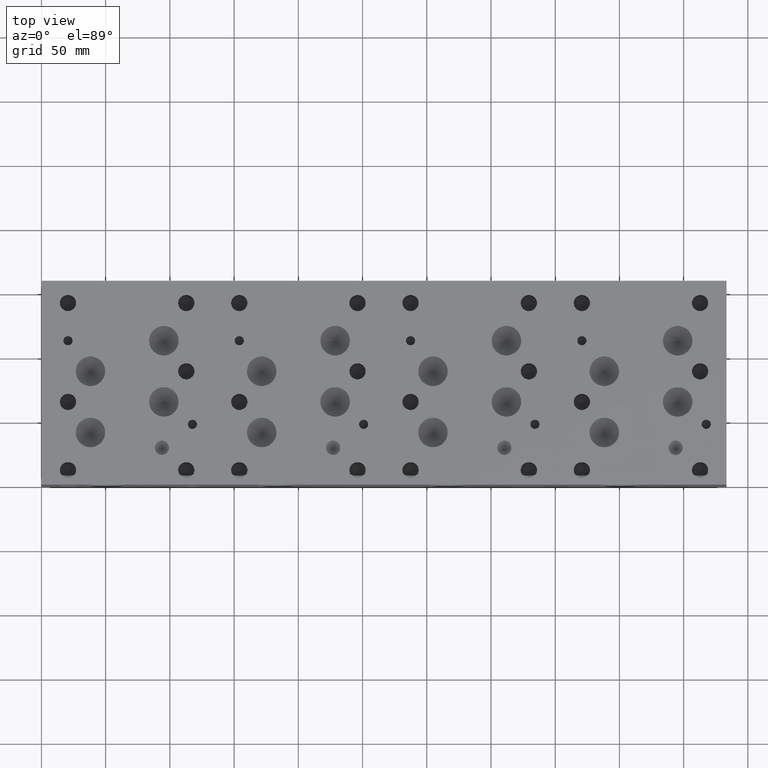
[diagram: clean part render]
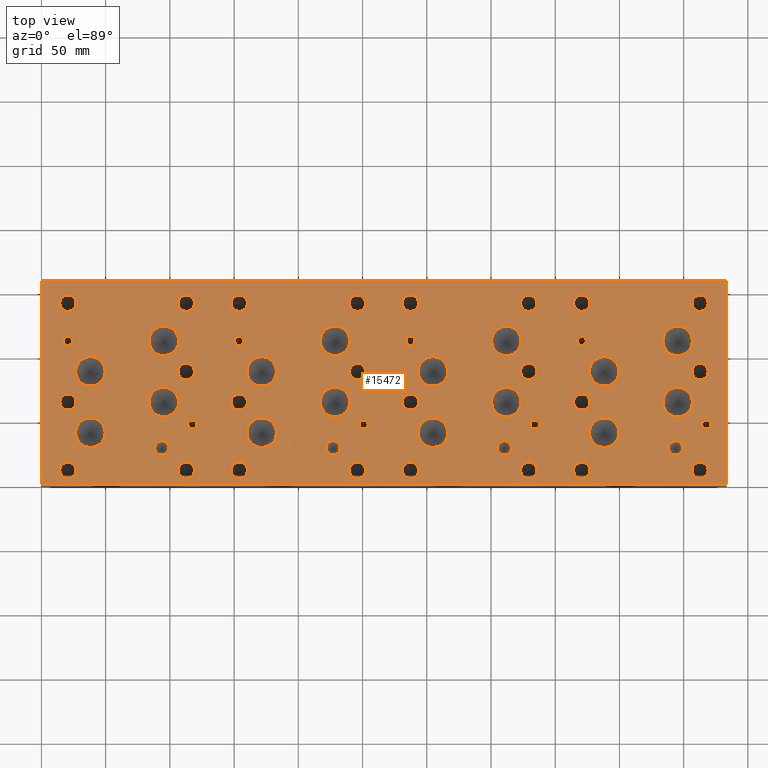
[diagram: same view with one face highlighted and labeled with its STEP entity id]
A machine part, top view. The second image highlights one B-rep face of the part: STEP entity #15472.
In plain terms, the highlighted planar face has unit normal (0, 0, 1).
Its self-contained STEP definition (entity closure, byte-faithful):
#421=CIRCLE('',#15925,5.5626);
#422=CIRCLE('',#15926,5.5626);
#425=CIRCLE('',#15931,5.5626);
#426=CIRCLE('',#15932,5.5626);
#429=CIRCLE('',#15937,5.5626);
#430=CIRCLE('',#15938,5.5626);
#530=CIRCLE('',#16116,5.55625);
#531=CIRCLE('',#16117,5.55625);
#534=CIRCLE('',#16122,11.50874);
#535=CIRCLE('',#16123,11.50874);
#538=CIRCLE('',#16128,11.5062);
#539=CIRCLE('',#16129,11.5062);
#542=CIRCLE('',#16134,11.5062);
#543=CIRCLE('',#16135,11.5062);
#546=CIRCLE('',#16140,11.5062);
#547=CIRCLE('',#16141,11.5062);
#550=CIRCLE('',#16146,11.5062);
#551=CIRCLE('',#16147,11.5062);
#554=CIRCLE('',#16152,11.5062);
#555=CIRCLE('',#16153,11.5062);
#558=CIRCLE('',#16158,11.5062);
#559=CIRCLE('',#16159,11.5062);
#562=CIRCLE('',#16164,11.5062);
#563=CIRCLE('',#16165,11.5062);
#566=CIRCLE('',#16170,11.5062);
#567=CIRCLE('',#16171,11.5062);
#570=CIRCLE('',#16176,11.5062);
#571=CIRCLE('',#16177,11.5062);
#574=CIRCLE('',#16182,11.5062);
#575=CIRCLE('',#16183,11.5062);
#578=CIRCLE('',#16188,11.5062);
#579=CIRCLE('',#16189,11.5062);
#582=CIRCLE('',#16194,11.5062);
#583=CIRCLE('',#16195,11.5062);
#586=CIRCLE('',#16200,11.5062);
#587=CIRCLE('',#16201,11.5062);
#590=CIRCLE('',#16206,11.5062);
#591=CIRCLE('',#16207,11.5062);
#594=CIRCLE('',#16212,11.5062);
#595=CIRCLE('',#16213,11.5062);
#598=CIRCLE('',#16218,3.5687);
#599=CIRCLE('',#16219,3.5687);
#602=CIRCLE('',#16224,3.5687);
#603=CIRCLE('',#16225,3.5687);
#606=CIRCLE('',#16230,3.5687);
#607=CIRCLE('',#16231,3.5687);
#610=CIRCLE('',#16236,3.5687);
#611=CIRCLE('',#16237,3.5687);
#614=CIRCLE('',#16242,3.5687);
#615=CIRCLE('',#16243,3.5687);
#618=CIRCLE('',#16248,3.5687);
#619=CIRCLE('',#16249,3.5687);
#622=CIRCLE('',#16254,3.5687);
#623=CIRCLE('',#16255,3.5687);
#626=CIRCLE('',#16260,3.5687);
#627=CIRCLE('',#16261,3.5687);
#633=CIRCLE('',#16270,6.35);
#634=CIRCLE('',#16271,6.35);
#640=CIRCLE('',#16281,6.35);
#641=CIRCLE('',#16282,6.35);
#647=CIRCLE('',#16292,6.35);
#648=CIRCLE('',#16293,6.35);
#654=CIRCLE('',#16303,6.35);
#655=CIRCLE('',#16304,6.35);
#661=CIRCLE('',#16314,6.35);
#662=CIRCLE('',#16315,6.35);
#668=CIRCLE('',#16325,6.35);
#669=CIRCLE('',#16326,6.35);
#675=CIRCLE('',#16336,6.35);
#676=CIRCLE('',#16337,6.35);
#682=CIRCLE('',#16347,6.35);
#683=CIRCLE('',#16348,6.35);
#689=CIRCLE('',#16358,6.35);
#690=CIRCLE('',#16359,6.35);
#696=CIRCLE('',#16369,6.35);
#697=CIRCLE('',#16370,6.35);
#703=CIRCLE('',#16380,6.35);
#704=CIRCLE('',#16381,6.35);
#710=CIRCLE('',#16391,6.35);
#711=CIRCLE('',#16392,6.35);
#717=CIRCLE('',#16402,6.35);
#718=CIRCLE('',#16403,6.35);
#724=CIRCLE('',#16413,6.35);
#725=CIRCLE('',#16414,6.35);
#731=CIRCLE('',#16424,6.35);
#732=CIRCLE('',#16425,6.35);
#738=CIRCLE('',#16435,6.35);
#739=CIRCLE('',#16436,6.35);
#745=CIRCLE('',#16446,6.35);
#746=CIRCLE('',#16447,6.35);
#752=CIRCLE('',#16457,6.35);
#753=CIRCLE('',#16458,6.35);
#759=CIRCLE('',#16468,6.35);
#760=CIRCLE('',#16469,6.35);
#766=CIRCLE('',#16479,6.35);
#767=CIRCLE('',#16480,6.35);
#773=CIRCLE('',#16490,6.35);
#774=CIRCLE('',#16491,6.35);
#780=CIRCLE('',#16501,6.35);
#781=CIRCLE('',#16502,6.35);
#787=CIRCLE('',#16512,6.35);
#788=CIRCLE('',#16513,6.35);
#794=CIRCLE('',#16523,6.35);
#795=CIRCLE('',#16524,6.35);
#1263=FACE_BOUND('',#3033,.T.);
#1264=FACE_BOUND('',#3034,.T.);
#1265=FACE_BOUND('',#3035,.T.);
#1266=FACE_BOUND('',#3036,.T.);
#1267=FACE_BOUND('',#3037,.T.);
#1268=FACE_BOUND('',#3038,.T.);
#1269=FACE_BOUND('',#3039,.T.);
#1270=FACE_BOUND('',#3040,.T.);
#1271=FACE_BOUND('',#3041,.T.);
#1272=FACE_BOUND('',#3042,.T.);
#1273=FACE_BOUND('',#3043,.T.);
#1274=FACE_BOUND('',#3044,.T.);
#1275=FACE_BOUND('',#3045,.T.);
#1276=FACE_BOUND('',#3046,.T.);
#1277=FACE_BOUND('',#3047,.T.);
#1278=FACE_BOUND('',#3048,.T.);
#1279=FACE_BOUND('',#3049,.T.);
#1280=FACE_BOUND('',#3050,.T.);
#1281=FACE_BOUND('',#3051,.T.);
#1282=FACE_BOUND('',#3052,.T.);
#1283=FACE_BOUND('',#3053,.T.);
#1284=FACE_BOUND('',#3054,.T.);
#1285=FACE_BOUND('',#3055,.T.);
#1286=FACE_BOUND('',#3056,.T.);
#1287=FACE_BOUND('',#3057,.T.);
#1288=FACE_BOUND('',#3058,.T.);
#1289=FACE_BOUND('',#3059,.T.);
#1290=FACE_BOUND('',#3060,.T.);
#1291=FACE_BOUND('',#3061,.T.);
#1292=FACE_BOUND('',#3062,.T.);
#1293=FACE_BOUND('',#3063,.T.);
#1294=FACE_BOUND('',#3064,.T.);
#1295=FACE_BOUND('',#3065,.T.);
#1296=FACE_BOUND('',#3066,.T.);
#1297=FACE_BOUND('',#3067,.T.);
#1298=FACE_BOUND('',#3068,.T.);
#1299=FACE_BOUND('',#3069,.T.);
#1300=FACE_BOUND('',#3070,.T.);
#1301=FACE_BOUND('',#3071,.T.);
#1302=FACE_BOUND('',#3072,.T.);
#1303=FACE_BOUND('',#3073,.T.);
#1304=FACE_BOUND('',#3074,.T.);
#1305=FACE_BOUND('',#3075,.T.);
#1306=FACE_BOUND('',#3076,.T.);
#1307=FACE_BOUND('',#3077,.T.);
#1308=FACE_BOUND('',#3078,.T.);
#1309=FACE_BOUND('',#3079,.T.);
#1310=FACE_BOUND('',#3080,.T.);
#1311=FACE_BOUND('',#3081,.T.);
#1312=FACE_BOUND('',#3082,.T.);
#1313=FACE_BOUND('',#3083,.T.);
#1314=FACE_BOUND('',#3084,.T.);
#2113=FACE_OUTER_BOUND('',#3032,.T.);
#3032=EDGE_LOOP('',(#13589,#13590,#13591,#13592));
#3033=EDGE_LOOP('',(#13593,#13594));
#3034=EDGE_LOOP('',(#13595,#13596));
#3035=EDGE_LOOP('',(#13597,#13598));
#3036=EDGE_LOOP('',(#13599,#13600));
#3037=EDGE_LOOP('',(#13601,#13602));
#3038=EDGE_LOOP('',(#13603,#13604));
#3039=EDGE_LOOP('',(#13605,#13606));
#3040=EDGE_LOOP('',(#13607,#13608));
#3041=EDGE_LOOP('',(#13609,#13610));
#3042=EDGE_LOOP('',(#13611,#13612));
#3043=EDGE_LOOP('',(#13613,#13614));
#3044=EDGE_LOOP('',(#13615,#13616));
#3045=EDGE_LOOP('',(#13617,#13618));
#3046=EDGE_LOOP('',(#13619,#13620));
#3047=EDGE_LOOP('',(#13621,#13622));
#3048=EDGE_LOOP('',(#13623,#13624));
#3049=EDGE_LOOP('',(#13625,#13626));
#3050=EDGE_LOOP('',(#13627,#13628));
#3051=EDGE_LOOP('',(#13629,#13630));
#3052=EDGE_LOOP('',(#13631,#13632));
#3053=EDGE_LOOP('',(#13633,#13634));
#3054=EDGE_LOOP('',(#13635,#13636));
#3055=EDGE_LOOP('',(#13637,#13638));
#3056=EDGE_LOOP('',(#13639,#13640));
#3057=EDGE_LOOP('',(#13641,#13642));
#3058=EDGE_LOOP('',(#13643,#13644));
#3059=EDGE_LOOP('',(#13645,#13646));
#3060=EDGE_LOOP('',(#13647,#13648));
#3061=EDGE_LOOP('',(#13649,#13650));
#3062=EDGE_LOOP('',(#13651,#13652));
#3063=EDGE_LOOP('',(#13653,#13654));
#3064=EDGE_LOOP('',(#13655,#13656));
#3065=EDGE_LOOP('',(#13657,#13658));
#3066=EDGE_LOOP('',(#13659,#13660));
#3067=EDGE_LOOP('',(#13661,#13662));
#3068=EDGE_LOOP('',(#13663,#13664));
#3069=EDGE_LOOP('',(#13665,#13666));
#3070=EDGE_LOOP('',(#13667,#13668));
#3071=EDGE_LOOP('',(#13669,#13670));
#3072=EDGE_LOOP('',(#13671,#13672));
#3073=EDGE_LOOP('',(#13673,#13674));
#3074=EDGE_LOOP('',(#13675,#13676));
#3075=EDGE_LOOP('',(#13677,#13678));
#3076=EDGE_LOOP('',(#13679,#13680));
#3077=EDGE_LOOP('',(#13681,#13682));
#3078=EDGE_LOOP('',(#13683,#13684));
#3079=EDGE_LOOP('',(#13685,#13686));
#3080=EDGE_LOOP('',(#13687,#13688));
#3081=EDGE_LOOP('',(#13689,#13690));
#3082=EDGE_LOOP('',(#13691,#13692));
#3083=EDGE_LOOP('',(#13693,#13694));
#3084=EDGE_LOOP('',(#13695,#13696));
#3121=LINE('',#20060,#4484);
#4090=LINE('',#24697,#5453);
#4148=LINE('',#24968,#5511);
#4448=LINE('',#26674,#5811);
#4484=VECTOR('',#16595,10.);
#5453=VECTOR('',#18226,10.);
#5511=VECTOR('',#18338,10.);
#5811=VECTOR('',#19976,10.);
#5836=VERTEX_POINT('',#20057);
#5837=VERTEX_POINT('',#20059);
#6718=VERTEX_POINT('',#24695);
#6776=VERTEX_POINT('',#24967);
#6871=VERTEX_POINT('',#25441);
#6872=VERTEX_POINT('',#25442);
#6876=VERTEX_POINT('',#25454);
#6877=VERTEX_POINT('',#25455);
#6881=VERTEX_POINT('',#25467);
#6882=VERTEX_POINT('',#25468);
#7000=VERTEX_POINT('',#25826);
#7001=VERTEX_POINT('',#25827);
#7005=VERTEX_POINT('',#25839);
#7006=VERTEX_POINT('',#25840);
#7010=VERTEX_POINT('',#25852);
#7011=VERTEX_POINT('',#25853);
#7015=VERTEX_POINT('',#25865);
#7016=VERTEX_POINT('',#25866);
#7020=VERTEX_POINT('',#25878);
#7021=VERTEX_POINT('',#25879);
#7025=VERTEX_POINT('',#25891);
#7026=VERTEX_POINT('',#25892);
#7030=VERTEX_POINT('',#25904);
#7031=VERTEX_POINT('',#25905);
#7035=VERTEX_POINT('',#25917);
#7036=VERTEX_POINT('',#25918);
#7040=VERTEX_POINT('',#25930);
#7041=VERTEX_POINT('',#25931);
#7045=VERTEX_POINT('',#25943);
#7046=VERTEX_POINT('',#25944);
#7050=VERTEX_POINT('',#25956);
#7051=VERTEX_POINT('',#25957);
#7055=VERTEX_POINT('',#25969);
#7056=VERTEX_POINT('',#25970);
#7060=VERTEX_POINT('',#25982);
#7061=VERTEX_POINT('',#25983);
#7065=VERTEX_POINT('',#25995);
#7066=VERTEX_POINT('',#25996);
#7070=VERTEX_POINT('',#26008);
#7071=VERTEX_POINT('',#26009);
#7075=VERTEX_POINT('',#26021);
#7076=VERTEX_POINT('',#26022);
#7080=VERTEX_POINT('',#26034);
#7081=VERTEX_POINT('',#26035);
#7085=VERTEX_POINT('',#26047);
#7086=VERTEX_POINT('',#26048);
#7090=VERTEX_POINT('',#26060);
#7091=VERTEX_POINT('',#26061);
#7095=VERTEX_POINT('',#26073);
#7096=VERTEX_POINT('',#26074);
#7100=VERTEX_POINT('',#26086);
#7101=VERTEX_POINT('',#26087);
#7105=VERTEX_POINT('',#26099);
#7106=VERTEX_POINT('',#26100);
#7110=VERTEX_POINT('',#26112);
#7111=VERTEX_POINT('',#26113);
#7115=VERTEX_POINT('',#26125);
#7116=VERTEX_POINT('',#26126);
#7120=VERTEX_POINT('',#26138);
#7121=VERTEX_POINT('',#26139);
#7128=VERTEX_POINT('',#26158);
#7129=VERTEX_POINT('',#26159);
#7136=VERTEX_POINT('',#26180);
#7137=VERTEX_POINT('',#26181);
#7144=VERTEX_POINT('',#26202);
#7145=VERTEX_POINT('',#26203);
#7152=VERTEX_POINT('',#26224);
#7153=VERTEX_POINT('',#26225);
#7160=VERTEX_POINT('',#26246);
#7161=VERTEX_POINT('',#26247);
#7168=VERTEX_POINT('',#26268);
#7169=VERTEX_POINT('',#26269);
#7176=VERTEX_POINT('',#26290);
#7177=VERTEX_POINT('',#26291);
#7184=VERTEX_POINT('',#26312);
#7185=VERTEX_POINT('',#26313);
#7192=VERTEX_POINT('',#26334);
#7193=VERTEX_POINT('',#26335);
#7200=VERTEX_POINT('',#26356);
#7201=VERTEX_POINT('',#26357);
#7208=VERTEX_POINT('',#26378);
#7209=VERTEX_POINT('',#26379);
#7216=VERTEX_POINT('',#26400);
#7217=VERTEX_POINT('',#26401);
#7224=VERTEX_POINT('',#26422);
#7225=VERTEX_POINT('',#26423);
#7232=VERTEX_POINT('',#26444);
#7233=VERTEX_POINT('',#26445);
#7240=VERTEX_POINT('',#26466);
#7241=VERTEX_POINT('',#26467);
#7248=VERTEX_POINT('',#26488);
#7249=VERTEX_POINT('',#26489);
#7256=VERTEX_POINT('',#26510);
#7257=VERTEX_POINT('',#26511);
#7264=VERTEX_POINT('',#26532);
#7265=VERTEX_POINT('',#26533);
#7272=VERTEX_POINT('',#26554);
#7273=VERTEX_POINT('',#26555);
#7280=VERTEX_POINT('',#26576);
#7281=VERTEX_POINT('',#26577);
#7288=VERTEX_POINT('',#26598);
#7289=VERTEX_POINT('',#26599);
#7296=VERTEX_POINT('',#26620);
#7297=VERTEX_POINT('',#26621);
#7304=VERTEX_POINT('',#26642);
#7305=VERTEX_POINT('',#26643);
#7312=VERTEX_POINT('',#26664);
#7313=VERTEX_POINT('',#26665);
#7349=EDGE_CURVE('',#5837,#5836,#3121,.T.);
#8648=EDGE_CURVE('',#5836,#6718,#4090,.T.);
#8730=EDGE_CURVE('',#6776,#5837,#4148,.T.);
#8880=EDGE_CURVE('',#6871,#6872,#421,.T.);
#8881=EDGE_CURVE('',#6872,#6871,#422,.T.);
#8886=EDGE_CURVE('',#6876,#6877,#425,.T.);
#8887=EDGE_CURVE('',#6877,#6876,#426,.T.);
#8892=EDGE_CURVE('',#6881,#6882,#429,.T.);
#8893=EDGE_CURVE('',#6882,#6881,#430,.T.);
#9054=EDGE_CURVE('',#7000,#7001,#530,.T.);
#9055=EDGE_CURVE('',#7001,#7000,#531,.T.);
#9060=EDGE_CURVE('',#7005,#7006,#534,.T.);
#9061=EDGE_CURVE('',#7006,#7005,#535,.T.);
#9066=EDGE_CURVE('',#7010,#7011,#538,.T.);
#9067=EDGE_CURVE('',#7011,#7010,#539,.T.);
#9072=EDGE_CURVE('',#7015,#7016,#542,.T.);
#9073=EDGE_CURVE('',#7016,#7015,#543,.T.);
#9078=EDGE_CURVE('',#7020,#7021,#546,.T.);
#9079=EDGE_CURVE('',#7021,#7020,#547,.T.);
#9084=EDGE_CURVE('',#7025,#7026,#550,.T.);
#9085=EDGE_CURVE('',#7026,#7025,#551,.T.);
#9090=EDGE_CURVE('',#7030,#7031,#554,.T.);
#9091=EDGE_CURVE('',#7031,#7030,#555,.T.);
#9096=EDGE_CURVE('',#7035,#7036,#558,.T.);
#9097=EDGE_CURVE('',#7036,#7035,#559,.T.);
#9102=EDGE_CURVE('',#7040,#7041,#562,.T.);
#9103=EDGE_CURVE('',#7041,#7040,#563,.T.);
#9108=EDGE_CURVE('',#7045,#7046,#566,.T.);
#9109=EDGE_CURVE('',#7046,#7045,#567,.T.);
#9114=EDGE_CURVE('',#7050,#7051,#570,.T.);
#9115=EDGE_CURVE('',#7051,#7050,#571,.T.);
#9120=EDGE_CURVE('',#7055,#7056,#574,.T.);
#9121=EDGE_CURVE('',#7056,#7055,#575,.T.);
#9126=EDGE_CURVE('',#7060,#7061,#578,.T.);
#9127=EDGE_CURVE('',#7061,#7060,#579,.T.);
#9132=EDGE_CURVE('',#7065,#7066,#582,.T.);
#9133=EDGE_CURVE('',#7066,#7065,#583,.T.);
#9138=EDGE_CURVE('',#7070,#7071,#586,.T.);
#9139=EDGE_CURVE('',#7071,#7070,#587,.T.);
#9144=EDGE_CURVE('',#7075,#7076,#590,.T.);
#9145=EDGE_CURVE('',#7076,#7075,#591,.T.);
#9150=EDGE_CURVE('',#7080,#7081,#594,.T.);
#9151=EDGE_CURVE('',#7081,#7080,#595,.T.);
#9156=EDGE_CURVE('',#7085,#7086,#598,.T.);
#9157=EDGE_CURVE('',#7086,#7085,#599,.T.);
#9162=EDGE_CURVE('',#7090,#7091,#602,.T.);
#9163=EDGE_CURVE('',#7091,#7090,#603,.T.);
#9168=EDGE_CURVE('',#7095,#7096,#606,.T.);
#9169=EDGE_CURVE('',#7096,#7095,#607,.T.);
#9174=EDGE_CURVE('',#7100,#7101,#610,.T.);
#9175=EDGE_CURVE('',#7101,#7100,#611,.T.);
#9180=EDGE_CURVE('',#7105,#7106,#614,.T.);
#9181=EDGE_CURVE('',#7106,#7105,#615,.T.);
#9186=EDGE_CURVE('',#7110,#7111,#618,.T.);
#9187=EDGE_CURVE('',#7111,#7110,#619,.T.);
#9192=EDGE_CURVE('',#7115,#7116,#622,.T.);
#9193=EDGE_CURVE('',#7116,#7115,#623,.T.);
#9198=EDGE_CURVE('',#7120,#7121,#626,.T.);
#9199=EDGE_CURVE('',#7121,#7120,#627,.T.);
#9207=EDGE_CURVE('',#7128,#7129,#633,.T.);
#9208=EDGE_CURVE('',#7129,#7128,#634,.T.);
#9217=EDGE_CURVE('',#7136,#7137,#640,.T.);
#9218=EDGE_CURVE('',#7137,#7136,#641,.T.);
#9227=EDGE_CURVE('',#7144,#7145,#647,.T.);
#9228=EDGE_CURVE('',#7145,#7144,#648,.T.);
#9237=EDGE_CURVE('',#7152,#7153,#654,.T.);
#9238=EDGE_CURVE('',#7153,#7152,#655,.T.);
#9247=EDGE_CURVE('',#7160,#7161,#661,.T.);
#9248=EDGE_CURVE('',#7161,#7160,#662,.T.);
#9257=EDGE_CURVE('',#7168,#7169,#668,.T.);
#9258=EDGE_CURVE('',#7169,#7168,#669,.T.);
#9267=EDGE_CURVE('',#7176,#7177,#675,.T.);
#9268=EDGE_CURVE('',#7177,#7176,#676,.T.);
#9277=EDGE_CURVE('',#7184,#7185,#682,.T.);
#9278=EDGE_CURVE('',#7185,#7184,#683,.T.);
#9287=EDGE_CURVE('',#7192,#7193,#689,.T.);
#9288=EDGE_CURVE('',#7193,#7192,#690,.T.);
#9297=EDGE_CURVE('',#7200,#7201,#696,.T.);
#9298=EDGE_CURVE('',#7201,#7200,#697,.T.);
#9307=EDGE_CURVE('',#7208,#7209,#703,.T.);
#9308=EDGE_CURVE('',#7209,#7208,#704,.T.);
#9317=EDGE_CURVE('',#7216,#7217,#710,.T.);
#9318=EDGE_CURVE('',#7217,#7216,#711,.T.);
#9327=EDGE_CURVE('',#7224,#7225,#717,.T.);
#9328=EDGE_CURVE('',#7225,#7224,#718,.T.);
#9337=EDGE_CURVE('',#7232,#7233,#724,.T.);
#9338=EDGE_CURVE('',#7233,#7232,#725,.T.);
#9347=EDGE_CURVE('',#7240,#7241,#731,.T.);
#9348=EDGE_CURVE('',#7241,#7240,#732,.T.);
#9357=EDGE_CURVE('',#7248,#7249,#738,.T.);
#9358=EDGE_CURVE('',#7249,#7248,#739,.T.);
#9367=EDGE_CURVE('',#7256,#7257,#745,.T.);
#9368=EDGE_CURVE('',#7257,#7256,#746,.T.);
#9377=EDGE_CURVE('',#7264,#7265,#752,.T.);
#9378=EDGE_CURVE('',#7265,#7264,#753,.T.);
#9387=EDGE_CURVE('',#7272,#7273,#759,.T.);
#9388=EDGE_CURVE('',#7273,#7272,#760,.T.);
#9397=EDGE_CURVE('',#7280,#7281,#766,.T.);
#9398=EDGE_CURVE('',#7281,#7280,#767,.T.);
#9407=EDGE_CURVE('',#7288,#7289,#773,.T.);
#9408=EDGE_CURVE('',#7289,#7288,#774,.T.);
#9417=EDGE_CURVE('',#7296,#7297,#780,.T.);
#9418=EDGE_CURVE('',#7297,#7296,#781,.T.);
#9427=EDGE_CURVE('',#7304,#7305,#787,.T.);
#9428=EDGE_CURVE('',#7305,#7304,#788,.T.);
#9437=EDGE_CURVE('',#7312,#7313,#794,.T.);
#9438=EDGE_CURVE('',#7313,#7312,#795,.T.);
#9442=EDGE_CURVE('',#6718,#6776,#4448,.T.);
#13589=ORIENTED_EDGE('',*,*,#7349,.T.);
#13590=ORIENTED_EDGE('',*,*,#8648,.T.);
#13591=ORIENTED_EDGE('',*,*,#9442,.T.);
#13592=ORIENTED_EDGE('',*,*,#8730,.T.);
#13593=ORIENTED_EDGE('',*,*,#8880,.T.);
#13594=ORIENTED_EDGE('',*,*,#8881,.T.);
#13595=ORIENTED_EDGE('',*,*,#8886,.T.);
#13596=ORIENTED_EDGE('',*,*,#8887,.T.);
#13597=ORIENTED_EDGE('',*,*,#8892,.T.);
#13598=ORIENTED_EDGE('',*,*,#8893,.T.);
#13599=ORIENTED_EDGE('',*,*,#9054,.T.);
#13600=ORIENTED_EDGE('',*,*,#9055,.T.);
#13601=ORIENTED_EDGE('',*,*,#9060,.T.);
#13602=ORIENTED_EDGE('',*,*,#9061,.T.);
#13603=ORIENTED_EDGE('',*,*,#9066,.T.);
#13604=ORIENTED_EDGE('',*,*,#9067,.T.);
#13605=ORIENTED_EDGE('',*,*,#9072,.T.);
#13606=ORIENTED_EDGE('',*,*,#9073,.T.);
#13607=ORIENTED_EDGE('',*,*,#9078,.T.);
#13608=ORIENTED_EDGE('',*,*,#9079,.T.);
#13609=ORIENTED_EDGE('',*,*,#9084,.T.);
#13610=ORIENTED_EDGE('',*,*,#9085,.T.);
#13611=ORIENTED_EDGE('',*,*,#9090,.T.);
#13612=ORIENTED_EDGE('',*,*,#9091,.T.);
#13613=ORIENTED_EDGE('',*,*,#9096,.T.);
#13614=ORIENTED_EDGE('',*,*,#9097,.T.);
#13615=ORIENTED_EDGE('',*,*,#9102,.T.);
#13616=ORIENTED_EDGE('',*,*,#9103,.T.);
#13617=ORIENTED_EDGE('',*,*,#9108,.T.);
#13618=ORIENTED_EDGE('',*,*,#9109,.T.);
#13619=ORIENTED_EDGE('',*,*,#9114,.T.);
#13620=ORIENTED_EDGE('',*,*,#9115,.T.);
#13621=ORIENTED_EDGE('',*,*,#9120,.T.);
#13622=ORIENTED_EDGE('',*,*,#9121,.T.);
#13623=ORIENTED_EDGE('',*,*,#9126,.T.);
#13624=ORIENTED_EDGE('',*,*,#9127,.T.);
#13625=ORIENTED_EDGE('',*,*,#9132,.T.);
#13626=ORIENTED_EDGE('',*,*,#9133,.T.);
#13627=ORIENTED_EDGE('',*,*,#9138,.T.);
#13628=ORIENTED_EDGE('',*,*,#9139,.T.);
#13629=ORIENTED_EDGE('',*,*,#9144,.T.);
#13630=ORIENTED_EDGE('',*,*,#9145,.T.);
#13631=ORIENTED_EDGE('',*,*,#9150,.T.);
#13632=ORIENTED_EDGE('',*,*,#9151,.T.);
#13633=ORIENTED_EDGE('',*,*,#9156,.T.);
#13634=ORIENTED_EDGE('',*,*,#9157,.T.);
#13635=ORIENTED_EDGE('',*,*,#9162,.T.);
#13636=ORIENTED_EDGE('',*,*,#9163,.T.);
#13637=ORIENTED_EDGE('',*,*,#9168,.T.);
#13638=ORIENTED_EDGE('',*,*,#9169,.T.);
#13639=ORIENTED_EDGE('',*,*,#9174,.T.);
#13640=ORIENTED_EDGE('',*,*,#9175,.T.);
#13641=ORIENTED_EDGE('',*,*,#9180,.T.);
#13642=ORIENTED_EDGE('',*,*,#9181,.T.);
#13643=ORIENTED_EDGE('',*,*,#9186,.T.);
#13644=ORIENTED_EDGE('',*,*,#9187,.T.);
#13645=ORIENTED_EDGE('',*,*,#9192,.T.);
#13646=ORIENTED_EDGE('',*,*,#9193,.T.);
#13647=ORIENTED_EDGE('',*,*,#9198,.T.);
#13648=ORIENTED_EDGE('',*,*,#9199,.T.);
#13649=ORIENTED_EDGE('',*,*,#9207,.T.);
#13650=ORIENTED_EDGE('',*,*,#9208,.T.);
#13651=ORIENTED_EDGE('',*,*,#9217,.T.);
#13652=ORIENTED_EDGE('',*,*,#9218,.T.);
#13653=ORIENTED_EDGE('',*,*,#9227,.T.);
#13654=ORIENTED_EDGE('',*,*,#9228,.T.);
#13655=ORIENTED_EDGE('',*,*,#9237,.T.);
#13656=ORIENTED_EDGE('',*,*,#9238,.T.);
#13657=ORIENTED_EDGE('',*,*,#9247,.T.);
#13658=ORIENTED_EDGE('',*,*,#9248,.T.);
#13659=ORIENTED_EDGE('',*,*,#9257,.T.);
#13660=ORIENTED_EDGE('',*,*,#9258,.T.);
#13661=ORIENTED_EDGE('',*,*,#9267,.T.);
#13662=ORIENTED_EDGE('',*,*,#9268,.T.);
#13663=ORIENTED_EDGE('',*,*,#9277,.T.);
#13664=ORIENTED_EDGE('',*,*,#9278,.T.);
#13665=ORIENTED_EDGE('',*,*,#9287,.T.);
#13666=ORIENTED_EDGE('',*,*,#9288,.T.);
#13667=ORIENTED_EDGE('',*,*,#9297,.T.);
#13668=ORIENTED_EDGE('',*,*,#9298,.T.);
#13669=ORIENTED_EDGE('',*,*,#9307,.T.);
#13670=ORIENTED_EDGE('',*,*,#9308,.T.);
#13671=ORIENTED_EDGE('',*,*,#9317,.T.);
#13672=ORIENTED_EDGE('',*,*,#9318,.T.);
#13673=ORIENTED_EDGE('',*,*,#9327,.T.);
#13674=ORIENTED_EDGE('',*,*,#9328,.T.);
#13675=ORIENTED_EDGE('',*,*,#9337,.T.);
#13676=ORIENTED_EDGE('',*,*,#9338,.T.);
#13677=ORIENTED_EDGE('',*,*,#9347,.T.);
#13678=ORIENTED_EDGE('',*,*,#9348,.T.);
#13679=ORIENTED_EDGE('',*,*,#9357,.T.);
#13680=ORIENTED_EDGE('',*,*,#9358,.T.);
#13681=ORIENTED_EDGE('',*,*,#9367,.T.);
#13682=ORIENTED_EDGE('',*,*,#9368,.T.);
#13683=ORIENTED_EDGE('',*,*,#9377,.T.);
#13684=ORIENTED_EDGE('',*,*,#9378,.T.);
#13685=ORIENTED_EDGE('',*,*,#9387,.T.);
#13686=ORIENTED_EDGE('',*,*,#9388,.T.);
#13687=ORIENTED_EDGE('',*,*,#9397,.T.);
#13688=ORIENTED_EDGE('',*,*,#9398,.T.);
#13689=ORIENTED_EDGE('',*,*,#9407,.T.);
#13690=ORIENTED_EDGE('',*,*,#9408,.T.);
#13691=ORIENTED_EDGE('',*,*,#9417,.T.);
#13692=ORIENTED_EDGE('',*,*,#9418,.T.);
#13693=ORIENTED_EDGE('',*,*,#9427,.T.);
#13694=ORIENTED_EDGE('',*,*,#9428,.T.);
#13695=ORIENTED_EDGE('',*,*,#9437,.T.);
#13696=ORIENTED_EDGE('',*,*,#9438,.T.);
#14135=PLANE('',#16530);
#15472=ADVANCED_FACE('',(#2113,#1263,#1264,#1265,#1266,#1267,#1268,#1269,
#1270,#1271,#1272,#1273,#1274,#1275,#1276,#1277,#1278,#1279,#1280,#1281,
#1282,#1283,#1284,#1285,#1286,#1287,#1288,#1289,#1290,#1291,#1292,#1293,
#1294,#1295,#1296,#1297,#1298,#1299,#1300,#1301,#1302,#1303,#1304,#1305,
#1306,#1307,#1308,#1309,#1310,#1311,#1312,#1313,#1314),#14135,.T.);
#15925=AXIS2_PLACEMENT_3D('',#25443,#18583,#18584);
#15926=AXIS2_PLACEMENT_3D('',#25444,#18585,#18586);
#15931=AXIS2_PLACEMENT_3D('',#25456,#18597,#18598);
#15932=AXIS2_PLACEMENT_3D('',#25457,#18599,#18600);
#15937=AXIS2_PLACEMENT_3D('',#25469,#18611,#18612);
#15938=AXIS2_PLACEMENT_3D('',#25470,#18613,#18614);
#16116=AXIS2_PLACEMENT_3D('',#25828,#19030,#19031);
#16117=AXIS2_PLACEMENT_3D('',#25829,#19032,#19033);
#16122=AXIS2_PLACEMENT_3D('',#25841,#19044,#19045);
#16123=AXIS2_PLACEMENT_3D('',#25842,#19046,#19047);
#16128=AXIS2_PLACEMENT_3D('',#25854,#19058,#19059);
#16129=AXIS2_PLACEMENT_3D('',#25855,#19060,#19061);
#16134=AXIS2_PLACEMENT_3D('',#25867,#19072,#19073);
#16135=AXIS2_PLACEMENT_3D('',#25868,#19074,#19075);
#16140=AXIS2_PLACEMENT_3D('',#25880,#19086,#19087);
#16141=AXIS2_PLACEMENT_3D('',#25881,#19088,#19089);
#16146=AXIS2_PLACEMENT_3D('',#25893,#19100,#19101);
#16147=AXIS2_PLACEMENT_3D('',#25894,#19102,#19103);
#16152=AXIS2_PLACEMENT_3D('',#25906,#19114,#19115);
#16153=AXIS2_PLACEMENT_3D('',#25907,#19116,#19117);
#16158=AXIS2_PLACEMENT_3D('',#25919,#19128,#19129);
#16159=AXIS2_PLACEMENT_3D('',#25920,#19130,#19131);
#16164=AXIS2_PLACEMENT_3D('',#25932,#19142,#19143);
#16165=AXIS2_PLACEMENT_3D('',#25933,#19144,#19145);
#16170=AXIS2_PLACEMENT_3D('',#25945,#19156,#19157);
#16171=AXIS2_PLACEMENT_3D('',#25946,#19158,#19159);
#16176=AXIS2_PLACEMENT_3D('',#25958,#19170,#19171);
#16177=AXIS2_PLACEMENT_3D('',#25959,#19172,#19173);
#16182=AXIS2_PLACEMENT_3D('',#25971,#19184,#19185);
#16183=AXIS2_PLACEMENT_3D('',#25972,#19186,#19187);
#16188=AXIS2_PLACEMENT_3D('',#25984,#19198,#19199);
#16189=AXIS2_PLACEMENT_3D('',#25985,#19200,#19201);
#16194=AXIS2_PLACEMENT_3D('',#25997,#19212,#19213);
#16195=AXIS2_PLACEMENT_3D('',#25998,#19214,#19215);
#16200=AXIS2_PLACEMENT_3D('',#26010,#19226,#19227);
#16201=AXIS2_PLACEMENT_3D('',#26011,#19228,#19229);
#16206=AXIS2_PLACEMENT_3D('',#26023,#19240,#19241);
#16207=AXIS2_PLACEMENT_3D('',#26024,#19242,#19243);
#16212=AXIS2_PLACEMENT_3D('',#26036,#19254,#19255);
#16213=AXIS2_PLACEMENT_3D('',#26037,#19256,#19257);
#16218=AXIS2_PLACEMENT_3D('',#26049,#19268,#19269);
#16219=AXIS2_PLACEMENT_3D('',#26050,#19270,#19271);
#16224=AXIS2_PLACEMENT_3D('',#26062,#19282,#19283);
#16225=AXIS2_PLACEMENT_3D('',#26063,#19284,#19285);
#16230=AXIS2_PLACEMENT_3D('',#26075,#19296,#19297);
#16231=AXIS2_PLACEMENT_3D('',#26076,#19298,#19299);
#16236=AXIS2_PLACEMENT_3D('',#26088,#19310,#19311);
#16237=AXIS2_PLACEMENT_3D('',#26089,#19312,#19313);
#16242=AXIS2_PLACEMENT_3D('',#26101,#19324,#19325);
#16243=AXIS2_PLACEMENT_3D('',#26102,#19326,#19327);
#16248=AXIS2_PLACEMENT_3D('',#26114,#19338,#19339);
#16249=AXIS2_PLACEMENT_3D('',#26115,#19340,#19341);
#16254=AXIS2_PLACEMENT_3D('',#26127,#19352,#19353);
#16255=AXIS2_PLACEMENT_3D('',#26128,#19354,#19355);
#16260=AXIS2_PLACEMENT_3D('',#26140,#19366,#19367);
#16261=AXIS2_PLACEMENT_3D('',#26141,#19368,#19369);
#16270=AXIS2_PLACEMENT_3D('',#26160,#19388,#19389);
#16271=AXIS2_PLACEMENT_3D('',#26161,#19390,#19391);
#16281=AXIS2_PLACEMENT_3D('',#26182,#19413,#19414);
#16282=AXIS2_PLACEMENT_3D('',#26183,#19415,#19416);
#16292=AXIS2_PLACEMENT_3D('',#26204,#19438,#19439);
#16293=AXIS2_PLACEMENT_3D('',#26205,#19440,#19441);
#16303=AXIS2_PLACEMENT_3D('',#26226,#19463,#19464);
#16304=AXIS2_PLACEMENT_3D('',#26227,#19465,#19466);
#16314=AXIS2_PLACEMENT_3D('',#26248,#19488,#19489);
#16315=AXIS2_PLACEMENT_3D('',#26249,#19490,#19491);
#16325=AXIS2_PLACEMENT_3D('',#26270,#19513,#19514);
#16326=AXIS2_PLACEMENT_3D('',#26271,#19515,#19516);
#16336=AXIS2_PLACEMENT_3D('',#26292,#19538,#19539);
#16337=AXIS2_PLACEMENT_3D('',#26293,#19540,#19541);
#16347=AXIS2_PLACEMENT_3D('',#26314,#19563,#19564);
#16348=AXIS2_PLACEMENT_3D('',#26315,#19565,#19566);
#16358=AXIS2_PLACEMENT_3D('',#26336,#19588,#19589);
#16359=AXIS2_PLACEMENT_3D('',#26337,#19590,#19591);
#16369=AXIS2_PLACEMENT_3D('',#26358,#19613,#19614);
#16370=AXIS2_PLACEMENT_3D('',#26359,#19615,#19616);
#16380=AXIS2_PLACEMENT_3D('',#26380,#19638,#19639);
#16381=AXIS2_PLACEMENT_3D('',#26381,#19640,#19641);
#16391=AXIS2_PLACEMENT_3D('',#26402,#19663,#19664);
#16392=AXIS2_PLACEMENT_3D('',#26403,#19665,#19666);
#16402=AXIS2_PLACEMENT_3D('',#26424,#19688,#19689);
#16403=AXIS2_PLACEMENT_3D('',#26425,#19690,#19691);
#16413=AXIS2_PLACEMENT_3D('',#26446,#19713,#19714);
#16414=AXIS2_PLACEMENT_3D('',#26447,#19715,#19716);
#16424=AXIS2_PLACEMENT_3D('',#26468,#19738,#19739);
#16425=AXIS2_PLACEMENT_3D('',#26469,#19740,#19741);
#16435=AXIS2_PLACEMENT_3D('',#26490,#19763,#19764);
#16436=AXIS2_PLACEMENT_3D('',#26491,#19765,#19766);
#16446=AXIS2_PLACEMENT_3D('',#26512,#19788,#19789);
#16447=AXIS2_PLACEMENT_3D('',#26513,#19790,#19791);
#16457=AXIS2_PLACEMENT_3D('',#26534,#19813,#19814);
#16458=AXIS2_PLACEMENT_3D('',#26535,#19815,#19816);
#16468=AXIS2_PLACEMENT_3D('',#26556,#19838,#19839);
#16469=AXIS2_PLACEMENT_3D('',#26557,#19840,#19841);
#16479=AXIS2_PLACEMENT_3D('',#26578,#19863,#19864);
#16480=AXIS2_PLACEMENT_3D('',#26579,#19865,#19866);
#16490=AXIS2_PLACEMENT_3D('',#26600,#19888,#19889);
#16491=AXIS2_PLACEMENT_3D('',#26601,#19890,#19891);
#16501=AXIS2_PLACEMENT_3D('',#26622,#19913,#19914);
#16502=AXIS2_PLACEMENT_3D('',#26623,#19915,#19916);
#16512=AXIS2_PLACEMENT_3D('',#26644,#19938,#19939);
#16513=AXIS2_PLACEMENT_3D('',#26645,#19940,#19941);
#16523=AXIS2_PLACEMENT_3D('',#26666,#19963,#19964);
#16524=AXIS2_PLACEMENT_3D('',#26667,#19965,#19966);
#16530=AXIS2_PLACEMENT_3D('',#26677,#19981,#19982);
#16595=DIRECTION('',(1.,0.,0.));
#18226=DIRECTION('',(0.,1.,0.));
#18338=DIRECTION('',(0.,-1.,0.));
#18583=DIRECTION('center_axis',(0.,0.,-1.));
#18584=DIRECTION('ref_axis',(1.,0.,0.));
#18585=DIRECTION('center_axis',(0.,0.,-1.));
#18586=DIRECTION('ref_axis',(1.,0.,0.));
#18597=DIRECTION('center_axis',(0.,0.,-1.));
#18598=DIRECTION('ref_axis',(1.,0.,0.));
#18599=DIRECTION('center_axis',(0.,0.,-1.));
#18600=DIRECTION('ref_axis',(1.,0.,0.));
#18611=DIRECTION('center_axis',(0.,0.,-1.));
#18612=DIRECTION('ref_axis',(1.,0.,0.));
#18613=DIRECTION('center_axis',(0.,0.,-1.));
#18614=DIRECTION('ref_axis',(1.,0.,0.));
#19030=DIRECTION('center_axis',(0.,0.,-1.));
#19031=DIRECTION('ref_axis',(1.,0.,0.));
#19032=DIRECTION('center_axis',(0.,0.,-1.));
#19033=DIRECTION('ref_axis',(1.,0.,0.));
#19044=DIRECTION('center_axis',(0.,0.,-1.));
#19045=DIRECTION('ref_axis',(1.,0.,0.));
#19046=DIRECTION('center_axis',(0.,0.,-1.));
#19047=DIRECTION('ref_axis',(1.,0.,0.));
#19058=DIRECTION('center_axis',(0.,0.,-1.));
#19059=DIRECTION('ref_axis',(1.,0.,0.));
#19060=DIRECTION('center_axis',(0.,0.,-1.));
#19061=DIRECTION('ref_axis',(1.,0.,0.));
#19072=DIRECTION('center_axis',(0.,0.,-1.));
#19073=DIRECTION('ref_axis',(1.,0.,0.));
#19074=DIRECTION('center_axis',(0.,0.,-1.));
#19075=DIRECTION('ref_axis',(1.,0.,0.));
#19086=DIRECTION('center_axis',(0.,0.,-1.));
#19087=DIRECTION('ref_axis',(1.,0.,0.));
#19088=DIRECTION('center_axis',(0.,0.,-1.));
#19089=DIRECTION('ref_axis',(1.,0.,0.));
#19100=DIRECTION('center_axis',(0.,0.,-1.));
#19101=DIRECTION('ref_axis',(1.,0.,0.));
#19102=DIRECTION('center_axis',(0.,0.,-1.));
#19103=DIRECTION('ref_axis',(1.,0.,0.));
#19114=DIRECTION('center_axis',(0.,0.,-1.));
#19115=DIRECTION('ref_axis',(1.,0.,0.));
#19116=DIRECTION('center_axis',(0.,0.,-1.));
#19117=DIRECTION('ref_axis',(1.,0.,0.));
#19128=DIRECTION('center_axis',(0.,0.,-1.));
#19129=DIRECTION('ref_axis',(1.,0.,0.));
#19130=DIRECTION('center_axis',(0.,0.,-1.));
#19131=DIRECTION('ref_axis',(1.,0.,0.));
#19142=DIRECTION('center_axis',(0.,0.,-1.));
#19143=DIRECTION('ref_axis',(1.,0.,0.));
#19144=DIRECTION('center_axis',(0.,0.,-1.));
#19145=DIRECTION('ref_axis',(1.,0.,0.));
#19156=DIRECTION('center_axis',(0.,0.,-1.));
#19157=DIRECTION('ref_axis',(1.,0.,0.));
#19158=DIRECTION('center_axis',(0.,0.,-1.));
#19159=DIRECTION('ref_axis',(1.,0.,0.));
#19170=DIRECTION('center_axis',(0.,0.,-1.));
#19171=DIRECTION('ref_axis',(1.,0.,0.));
#19172=DIRECTION('center_axis',(0.,0.,-1.));
#19173=DIRECTION('ref_axis',(1.,0.,0.));
#19184=DIRECTION('center_axis',(0.,0.,-1.));
#19185=DIRECTION('ref_axis',(1.,0.,0.));
#19186=DIRECTION('center_axis',(0.,0.,-1.));
#19187=DIRECTION('ref_axis',(1.,0.,0.));
#19198=DIRECTION('center_axis',(0.,0.,-1.));
#19199=DIRECTION('ref_axis',(1.,0.,0.));
#19200=DIRECTION('center_axis',(0.,0.,-1.));
#19201=DIRECTION('ref_axis',(1.,0.,0.));
#19212=DIRECTION('center_axis',(0.,0.,-1.));
#19213=DIRECTION('ref_axis',(1.,0.,0.));
#19214=DIRECTION('center_axis',(0.,0.,-1.));
#19215=DIRECTION('ref_axis',(1.,0.,0.));
#19226=DIRECTION('center_axis',(0.,0.,-1.));
#19227=DIRECTION('ref_axis',(1.,0.,0.));
#19228=DIRECTION('center_axis',(0.,0.,-1.));
#19229=DIRECTION('ref_axis',(1.,0.,0.));
#19240=DIRECTION('center_axis',(0.,0.,-1.));
#19241=DIRECTION('ref_axis',(1.,0.,0.));
#19242=DIRECTION('center_axis',(0.,0.,-1.));
#19243=DIRECTION('ref_axis',(1.,0.,0.));
#19254=DIRECTION('center_axis',(0.,0.,-1.));
#19255=DIRECTION('ref_axis',(1.,0.,0.));
#19256=DIRECTION('center_axis',(0.,0.,-1.));
#19257=DIRECTION('ref_axis',(1.,0.,0.));
#19268=DIRECTION('center_axis',(0.,0.,-1.));
#19269=DIRECTION('ref_axis',(1.,0.,0.));
#19270=DIRECTION('center_axis',(0.,0.,-1.));
#19271=DIRECTION('ref_axis',(1.,0.,0.));
#19282=DIRECTION('center_axis',(0.,0.,-1.));
#19283=DIRECTION('ref_axis',(1.,0.,0.));
#19284=DIRECTION('center_axis',(0.,0.,-1.));
#19285=DIRECTION('ref_axis',(1.,0.,0.));
#19296=DIRECTION('center_axis',(0.,0.,-1.));
#19297=DIRECTION('ref_axis',(1.,0.,0.));
#19298=DIRECTION('center_axis',(0.,0.,-1.));
#19299=DIRECTION('ref_axis',(1.,0.,0.));
#19310=DIRECTION('center_axis',(0.,0.,-1.));
#19311=DIRECTION('ref_axis',(1.,0.,0.));
#19312=DIRECTION('center_axis',(0.,0.,-1.));
#19313=DIRECTION('ref_axis',(1.,0.,0.));
#19324=DIRECTION('center_axis',(0.,0.,-1.));
#19325=DIRECTION('ref_axis',(1.,0.,0.));
#19326=DIRECTION('center_axis',(0.,0.,-1.));
#19327=DIRECTION('ref_axis',(1.,0.,0.));
#19338=DIRECTION('center_axis',(0.,0.,-1.));
#19339=DIRECTION('ref_axis',(1.,0.,0.));
#19340=DIRECTION('center_axis',(0.,0.,-1.));
#19341=DIRECTION('ref_axis',(1.,0.,0.));
#19352=DIRECTION('center_axis',(0.,0.,-1.));
#19353=DIRECTION('ref_axis',(1.,0.,0.));
#19354=DIRECTION('center_axis',(0.,0.,-1.));
#19355=DIRECTION('ref_axis',(1.,0.,0.));
#19366=DIRECTION('center_axis',(0.,0.,-1.));
#19367=DIRECTION('ref_axis',(1.,0.,0.));
#19368=DIRECTION('center_axis',(0.,0.,-1.));
#19369=DIRECTION('ref_axis',(1.,0.,0.));
#19388=DIRECTION('center_axis',(0.,0.,-1.));
#19389=DIRECTION('ref_axis',(1.,0.,0.));
#19390=DIRECTION('center_axis',(0.,0.,-1.));
#19391=DIRECTION('ref_axis',(1.,0.,0.));
#19413=DIRECTION('center_axis',(0.,0.,-1.));
#19414=DIRECTION('ref_axis',(1.,0.,0.));
#19415=DIRECTION('center_axis',(0.,0.,-1.));
#19416=DIRECTION('ref_axis',(1.,0.,0.));
#19438=DIRECTION('center_axis',(0.,0.,-1.));
#19439=DIRECTION('ref_axis',(1.,0.,0.));
#19440=DIRECTION('center_axis',(0.,0.,-1.));
#19441=DIRECTION('ref_axis',(1.,0.,0.));
#19463=DIRECTION('center_axis',(0.,0.,-1.));
#19464=DIRECTION('ref_axis',(1.,0.,0.));
#19465=DIRECTION('center_axis',(0.,0.,-1.));
#19466=DIRECTION('ref_axis',(1.,0.,0.));
#19488=DIRECTION('center_axis',(0.,0.,-1.));
#19489=DIRECTION('ref_axis',(1.,0.,0.));
#19490=DIRECTION('center_axis',(0.,0.,-1.));
#19491=DIRECTION('ref_axis',(1.,0.,0.));
#19513=DIRECTION('center_axis',(0.,0.,-1.));
#19514=DIRECTION('ref_axis',(1.,0.,0.));
#19515=DIRECTION('center_axis',(0.,0.,-1.));
#19516=DIRECTION('ref_axis',(1.,0.,0.));
#19538=DIRECTION('center_axis',(0.,0.,-1.));
#19539=DIRECTION('ref_axis',(1.,0.,0.));
#19540=DIRECTION('center_axis',(0.,0.,-1.));
#19541=DIRECTION('ref_axis',(1.,0.,0.));
#19563=DIRECTION('center_axis',(0.,0.,-1.));
#19564=DIRECTION('ref_axis',(1.,0.,0.));
#19565=DIRECTION('center_axis',(0.,0.,-1.));
#19566=DIRECTION('ref_axis',(1.,0.,0.));
#19588=DIRECTION('center_axis',(0.,0.,-1.));
#19589=DIRECTION('ref_axis',(1.,0.,0.));
#19590=DIRECTION('center_axis',(0.,0.,-1.));
#19591=DIRECTION('ref_axis',(1.,0.,0.));
#19613=DIRECTION('center_axis',(0.,0.,-1.));
#19614=DIRECTION('ref_axis',(1.,0.,0.));
#19615=DIRECTION('center_axis',(0.,0.,-1.));
#19616=DIRECTION('ref_axis',(1.,0.,0.));
#19638=DIRECTION('center_axis',(0.,0.,-1.));
#19639=DIRECTION('ref_axis',(1.,0.,0.));
#19640=DIRECTION('center_axis',(0.,0.,-1.));
#19641=DIRECTION('ref_axis',(1.,0.,0.));
#19663=DIRECTION('center_axis',(0.,0.,-1.));
#19664=DIRECTION('ref_axis',(1.,0.,0.));
#19665=DIRECTION('center_axis',(0.,0.,-1.));
#19666=DIRECTION('ref_axis',(1.,0.,0.));
#19688=DIRECTION('center_axis',(0.,0.,-1.));
#19689=DIRECTION('ref_axis',(1.,0.,0.));
#19690=DIRECTION('center_axis',(0.,0.,-1.));
#19691=DIRECTION('ref_axis',(1.,0.,0.));
#19713=DIRECTION('center_axis',(0.,0.,-1.));
#19714=DIRECTION('ref_axis',(1.,0.,0.));
#19715=DIRECTION('center_axis',(0.,0.,-1.));
#19716=DIRECTION('ref_axis',(1.,0.,0.));
#19738=DIRECTION('center_axis',(0.,0.,-1.));
#19739=DIRECTION('ref_axis',(1.,0.,0.));
#19740=DIRECTION('center_axis',(0.,0.,-1.));
#19741=DIRECTION('ref_axis',(1.,0.,0.));
#19763=DIRECTION('center_axis',(0.,0.,-1.));
#19764=DIRECTION('ref_axis',(1.,0.,0.));
#19765=DIRECTION('center_axis',(0.,0.,-1.));
#19766=DIRECTION('ref_axis',(1.,0.,0.));
#19788=DIRECTION('center_axis',(0.,0.,-1.));
#19789=DIRECTION('ref_axis',(1.,0.,0.));
#19790=DIRECTION('center_axis',(0.,0.,-1.));
#19791=DIRECTION('ref_axis',(1.,0.,0.));
#19813=DIRECTION('center_axis',(0.,0.,-1.));
#19814=DIRECTION('ref_axis',(1.,0.,0.));
#19815=DIRECTION('center_axis',(0.,0.,-1.));
#19816=DIRECTION('ref_axis',(1.,0.,0.));
#19838=DIRECTION('center_axis',(0.,0.,-1.));
#19839=DIRECTION('ref_axis',(1.,0.,0.));
#19840=DIRECTION('center_axis',(0.,0.,-1.));
#19841=DIRECTION('ref_axis',(1.,0.,0.));
#19863=DIRECTION('center_axis',(0.,0.,-1.));
#19864=DIRECTION('ref_axis',(1.,0.,0.));
#19865=DIRECTION('center_axis',(0.,0.,-1.));
#19866=DIRECTION('ref_axis',(1.,0.,0.));
#19888=DIRECTION('center_axis',(0.,0.,-1.));
#19889=DIRECTION('ref_axis',(1.,0.,0.));
#19890=DIRECTION('center_axis',(0.,0.,-1.));
#19891=DIRECTION('ref_axis',(1.,0.,0.));
#19913=DIRECTION('center_axis',(0.,0.,-1.));
#19914=DIRECTION('ref_axis',(1.,0.,0.));
#19915=DIRECTION('center_axis',(0.,0.,-1.));
#19916=DIRECTION('ref_axis',(1.,0.,0.));
#19938=DIRECTION('center_axis',(0.,0.,-1.));
#19939=DIRECTION('ref_axis',(1.,0.,0.));
#19940=DIRECTION('center_axis',(0.,0.,-1.));
#19941=DIRECTION('ref_axis',(1.,0.,0.));
#19963=DIRECTION('center_axis',(0.,0.,-1.));
#19964=DIRECTION('ref_axis',(1.,0.,0.));
#19965=DIRECTION('center_axis',(0.,0.,-1.));
#19966=DIRECTION('ref_axis',(1.,0.,0.));
#19976=DIRECTION('',(-1.,0.,0.));
#19981=DIRECTION('center_axis',(0.,0.,1.));
#19982=DIRECTION('ref_axis',(1.,0.,0.));
#20057=CARTESIAN_POINT('',(533.4,0.,120.65));
#20059=CARTESIAN_POINT('',(0.,0.,120.65));
#20060=CARTESIAN_POINT('',(0.,0.,120.65));
#24695=CARTESIAN_POINT('',(533.4,158.75,120.65));
#24697=CARTESIAN_POINT('',(533.4,0.,120.65));
#24967=CARTESIAN_POINT('',(0.,158.75,120.65));
#24968=CARTESIAN_POINT('',(0.,158.75,120.65));
#25441=CARTESIAN_POINT('',(365.9124,28.575,120.65));
#25442=CARTESIAN_POINT('',(354.7872,28.575,120.65));
#25443=CARTESIAN_POINT('Origin',(360.3498,28.575,120.65));
#25444=CARTESIAN_POINT('Origin',(360.3498,28.575,120.65));
#25454=CARTESIAN_POINT('',(232.5624,28.575,120.65));
#25455=CARTESIAN_POINT('',(221.4372,28.575,120.65));
#25456=CARTESIAN_POINT('Origin',(226.9998,28.575,120.65));
#25457=CARTESIAN_POINT('Origin',(226.9998,28.575,120.65));
#25467=CARTESIAN_POINT('',(499.2624,28.575,120.65));
#25468=CARTESIAN_POINT('',(488.1372,28.575,120.65));
#25469=CARTESIAN_POINT('Origin',(493.6998,28.575,120.65));
#25470=CARTESIAN_POINT('Origin',(493.6998,28.575,120.65));
#25826=CARTESIAN_POINT('',(99.21875,28.56992,120.65));
#25827=CARTESIAN_POINT('',(88.10625,28.56992,120.65));
#25828=CARTESIAN_POINT('Origin',(93.6625,28.56992,120.65));
#25829=CARTESIAN_POINT('Origin',(93.6625,28.56992,120.65));
#25839=CARTESIAN_POINT('',(106.75874,111.9124,120.65));
#25840=CARTESIAN_POINT('',(83.74126,111.9124,120.65));
#25841=CARTESIAN_POINT('Origin',(95.25,111.9124,120.65));
#25842=CARTESIAN_POINT('Origin',(95.25,111.9124,120.65));
#25852=CARTESIAN_POINT('',(449.6562,88.1126,120.65));
#25853=CARTESIAN_POINT('',(426.6438,88.1126,120.65));
#25854=CARTESIAN_POINT('Origin',(438.15,88.1126,120.65));
#25855=CARTESIAN_POINT('Origin',(438.15,88.1126,120.65));
#25865=CARTESIAN_POINT('',(506.8062,64.2874,120.65));
#25866=CARTESIAN_POINT('',(483.7938,64.2874,120.65));
#25867=CARTESIAN_POINT('Origin',(495.3,64.2874,120.65));
#25868=CARTESIAN_POINT('Origin',(495.3,64.2874,120.65));
#25878=CARTESIAN_POINT('',(316.3062,88.1126,120.65));
#25879=CARTESIAN_POINT('',(293.2938,88.1126,120.65));
#25880=CARTESIAN_POINT('Origin',(304.8,88.1126,120.65));
#25881=CARTESIAN_POINT('Origin',(304.8,88.1126,120.65));
#25891=CARTESIAN_POINT('',(373.4562,64.2874,120.65));
#25892=CARTESIAN_POINT('',(350.4438,64.2874,120.65));
#25893=CARTESIAN_POINT('Origin',(361.95,64.2874,120.65));
#25894=CARTESIAN_POINT('Origin',(361.95,64.2874,120.65));
#25904=CARTESIAN_POINT('',(182.9562,88.1126,120.65));
#25905=CARTESIAN_POINT('',(159.9438,88.1126,120.65));
#25906=CARTESIAN_POINT('Origin',(171.45,88.1126,120.65));
#25907=CARTESIAN_POINT('Origin',(171.45,88.1126,120.65));
#25917=CARTESIAN_POINT('',(240.1062,64.2874,120.65));
#25918=CARTESIAN_POINT('',(217.0938,64.2874,120.65));
#25919=CARTESIAN_POINT('Origin',(228.6,64.2874,120.65));
#25920=CARTESIAN_POINT('Origin',(228.6,64.2874,120.65));
#25930=CARTESIAN_POINT('',(49.6062,88.1126,120.65));
#25931=CARTESIAN_POINT('',(26.5938,88.1126,120.65));
#25932=CARTESIAN_POINT('Origin',(38.1,88.1126,120.65));
#25933=CARTESIAN_POINT('Origin',(38.1,88.1126,120.65));
#25943=CARTESIAN_POINT('',(106.7562,64.2874,120.65));
#25944=CARTESIAN_POINT('',(83.7438,64.2874,120.65));
#25945=CARTESIAN_POINT('Origin',(95.25,64.2874,120.65));
#25946=CARTESIAN_POINT('Origin',(95.25,64.2874,120.65));
#25956=CARTESIAN_POINT('',(49.6062,40.4622,120.65));
#25957=CARTESIAN_POINT('',(26.5938,40.4622,120.65));
#25958=CARTESIAN_POINT('Origin',(38.1,40.4622,120.65));
#25959=CARTESIAN_POINT('Origin',(38.1,40.4622,120.65));
#25969=CARTESIAN_POINT('',(240.1062,111.9124,120.65));
#25970=CARTESIAN_POINT('',(217.0938,111.9124,120.65));
#25971=CARTESIAN_POINT('Origin',(228.6,111.9124,120.65));
#25972=CARTESIAN_POINT('Origin',(228.6,111.9124,120.65));
#25982=CARTESIAN_POINT('',(182.9562,40.4622,120.65));
#25983=CARTESIAN_POINT('',(159.9438,40.4622,120.65));
#25984=CARTESIAN_POINT('Origin',(171.45,40.4622,120.65));
#25985=CARTESIAN_POINT('Origin',(171.45,40.4622,120.65));
#25995=CARTESIAN_POINT('',(373.4562,111.9124,120.65));
#25996=CARTESIAN_POINT('',(350.4438,111.9124,120.65));
#25997=CARTESIAN_POINT('Origin',(361.95,111.9124,120.65));
#25998=CARTESIAN_POINT('Origin',(361.95,111.9124,120.65));
#26008=CARTESIAN_POINT('',(316.3062,40.4622,120.65));
#26009=CARTESIAN_POINT('',(293.2938,40.4622,120.65));
#26010=CARTESIAN_POINT('Origin',(304.8,40.4622,120.65));
#26011=CARTESIAN_POINT('Origin',(304.8,40.4622,120.65));
#26021=CARTESIAN_POINT('',(506.8062,111.9124,120.65));
#26022=CARTESIAN_POINT('',(483.7938,111.9124,120.65));
#26023=CARTESIAN_POINT('Origin',(495.3,111.9124,120.65));
#26024=CARTESIAN_POINT('Origin',(495.3,111.9124,120.65));
#26034=CARTESIAN_POINT('',(449.6562,40.4622,120.65));
#26035=CARTESIAN_POINT('',(426.6438,40.4622,120.65));
#26036=CARTESIAN_POINT('Origin',(438.15,40.4622,120.65));
#26037=CARTESIAN_POINT('Origin',(438.15,40.4622,120.65));
#26047=CARTESIAN_POINT('',(424.2435,111.9124,120.65));
#26048=CARTESIAN_POINT('',(417.1061,111.9124,120.65));
#26049=CARTESIAN_POINT('Origin',(420.6748,111.9124,120.65));
#26050=CARTESIAN_POINT('Origin',(420.6748,111.9124,120.65));
#26060=CARTESIAN_POINT('',(290.8935,111.9124,120.65));
#26061=CARTESIAN_POINT('',(283.7561,111.9124,120.65));
#26062=CARTESIAN_POINT('Origin',(287.3248,111.9124,120.65));
#26063=CARTESIAN_POINT('Origin',(287.3248,111.9124,120.65));
#26073=CARTESIAN_POINT('',(157.5435,111.9124,120.65));
#26074=CARTESIAN_POINT('',(150.4061,111.9124,120.65));
#26075=CARTESIAN_POINT('Origin',(153.9748,111.9124,120.65));
#26076=CARTESIAN_POINT('Origin',(153.9748,111.9124,120.65));
#26086=CARTESIAN_POINT('',(24.1935,111.9124,120.65));
#26087=CARTESIAN_POINT('',(17.0561,111.9124,120.65));
#26088=CARTESIAN_POINT('Origin',(20.6248,111.9124,120.65));
#26089=CARTESIAN_POINT('Origin',(20.6248,111.9124,120.65));
#26099=CARTESIAN_POINT('',(121.0437,46.8376,120.65));
#26100=CARTESIAN_POINT('',(113.9063,46.8376,120.65));
#26101=CARTESIAN_POINT('Origin',(117.475,46.8376,120.65));
#26102=CARTESIAN_POINT('Origin',(117.475,46.8376,120.65));
#26112=CARTESIAN_POINT('',(254.3937,46.8376,120.65));
#26113=CARTESIAN_POINT('',(247.2563,46.8376,120.65));
#26114=CARTESIAN_POINT('Origin',(250.825,46.8376,120.65));
#26115=CARTESIAN_POINT('Origin',(250.825,46.8376,120.65));
#26125=CARTESIAN_POINT('',(387.7437,46.8376,120.65));
#26126=CARTESIAN_POINT('',(380.6063,46.8376,120.65));
#26127=CARTESIAN_POINT('Origin',(384.175,46.8376,120.65));
#26128=CARTESIAN_POINT('Origin',(384.175,46.8376,120.65));
#26138=CARTESIAN_POINT('',(521.0937,46.8376,120.65));
#26139=CARTESIAN_POINT('',(513.9563,46.8376,120.65));
#26140=CARTESIAN_POINT('Origin',(517.525,46.8376,120.65));
#26141=CARTESIAN_POINT('Origin',(517.525,46.8376,120.65));
#26158=CARTESIAN_POINT('',(427.0248,11.0998,120.65));
#26159=CARTESIAN_POINT('',(414.3248,11.0998,120.65));
#26160=CARTESIAN_POINT('Origin',(420.6748,11.0998,120.65));
#26161=CARTESIAN_POINT('Origin',(420.6748,11.0998,120.65));
#26180=CARTESIAN_POINT('',(519.1252,88.0872,120.65));
#26181=CARTESIAN_POINT('',(506.4252,88.0872,120.65));
#26182=CARTESIAN_POINT('Origin',(512.7752,88.0872,120.65));
#26183=CARTESIAN_POINT('Origin',(512.7752,88.0872,120.65));
#26202=CARTESIAN_POINT('',(427.0248,141.2748,120.65));
#26203=CARTESIAN_POINT('',(414.3248,141.2748,120.65));
#26204=CARTESIAN_POINT('Origin',(420.6748,141.2748,120.65));
#26205=CARTESIAN_POINT('Origin',(420.6748,141.2748,120.65));
#26224=CARTESIAN_POINT('',(293.6748,11.0998,120.65));
#26225=CARTESIAN_POINT('',(280.9748,11.0998,120.65));
#26226=CARTESIAN_POINT('Origin',(287.3248,11.0998,120.65));
#26227=CARTESIAN_POINT('Origin',(287.3248,11.0998,120.65));
#26246=CARTESIAN_POINT('',(385.7752,88.0872,120.65));
#26247=CARTESIAN_POINT('',(373.0752,88.0872,120.65));
#26248=CARTESIAN_POINT('Origin',(379.4252,88.0872,120.65));
#26249=CARTESIAN_POINT('Origin',(379.4252,88.0872,120.65));
#26268=CARTESIAN_POINT('',(293.6748,141.2748,120.65));
#26269=CARTESIAN_POINT('',(280.9748,141.2748,120.65));
#26270=CARTESIAN_POINT('Origin',(287.3248,141.2748,120.65));
#26271=CARTESIAN_POINT('Origin',(287.3248,141.2748,120.65));
#26290=CARTESIAN_POINT('',(160.3248,11.0998,120.65));
#26291=CARTESIAN_POINT('',(147.6248,11.0998,120.65));
#26292=CARTESIAN_POINT('Origin',(153.9748,11.0998,120.65));
#26293=CARTESIAN_POINT('Origin',(153.9748,11.0998,120.65));
#26312=CARTESIAN_POINT('',(252.4252,88.0872,120.65));
#26313=CARTESIAN_POINT('',(239.7252,88.0872,120.65));
#26314=CARTESIAN_POINT('Origin',(246.0752,88.0872,120.65));
#26315=CARTESIAN_POINT('Origin',(246.0752,88.0872,120.65));
#26334=CARTESIAN_POINT('',(160.3248,141.2748,120.65));
#26335=CARTESIAN_POINT('',(147.6248,141.2748,120.65));
#26336=CARTESIAN_POINT('Origin',(153.9748,141.2748,120.65));
#26337=CARTESIAN_POINT('Origin',(153.9748,141.2748,120.65));
#26356=CARTESIAN_POINT('',(26.9875,11.10742,120.65));
#26357=CARTESIAN_POINT('',(14.2875,11.10742,120.65));
#26358=CARTESIAN_POINT('Origin',(20.6375,11.10742,120.65));
#26359=CARTESIAN_POINT('Origin',(20.6375,11.10742,120.65));
#26378=CARTESIAN_POINT('',(119.0752,88.0999,120.65));
#26379=CARTESIAN_POINT('',(106.3752,88.0999,120.65));
#26380=CARTESIAN_POINT('Origin',(112.7252,88.0999,120.65));
#26381=CARTESIAN_POINT('Origin',(112.7252,88.0999,120.65));
#26400=CARTESIAN_POINT('',(26.9748,141.2748,120.65));
#26401=CARTESIAN_POINT('',(14.2748,141.2748,120.65));
#26402=CARTESIAN_POINT('Origin',(20.6248,141.2748,120.65));
#26403=CARTESIAN_POINT('Origin',(20.6248,141.2748,120.65));
#26422=CARTESIAN_POINT('',(119.0625,141.27988,120.65));
#26423=CARTESIAN_POINT('',(106.3625,141.27988,120.65));
#26424=CARTESIAN_POINT('Origin',(112.7125,141.27988,120.65));
#26425=CARTESIAN_POINT('Origin',(112.7125,141.27988,120.65));
#26444=CARTESIAN_POINT('',(119.0625,11.10742,120.65));
#26445=CARTESIAN_POINT('',(106.3625,11.10742,120.65));
#26446=CARTESIAN_POINT('Origin',(112.7125,11.10742,120.65));
#26447=CARTESIAN_POINT('Origin',(112.7125,11.10742,120.65));
#26466=CARTESIAN_POINT('',(27.0002,64.2874,120.65));
#26467=CARTESIAN_POINT('',(14.3002,64.2874,120.65));
#26468=CARTESIAN_POINT('Origin',(20.6502,64.2874,120.65));
#26469=CARTESIAN_POINT('Origin',(20.6502,64.2874,120.65));
#26488=CARTESIAN_POINT('',(252.3998,141.2748,120.65));
#26489=CARTESIAN_POINT('',(239.6998,141.2748,120.65));
#26490=CARTESIAN_POINT('Origin',(246.0498,141.2748,120.65));
#26491=CARTESIAN_POINT('Origin',(246.0498,141.2748,120.65));
#26510=CARTESIAN_POINT('',(252.3998,11.0998,120.65));
#26511=CARTESIAN_POINT('',(239.6998,11.0998,120.65));
#26512=CARTESIAN_POINT('Origin',(246.0498,11.0998,120.65));
#26513=CARTESIAN_POINT('Origin',(246.0498,11.0998,120.65));
#26532=CARTESIAN_POINT('',(160.3502,64.2874,120.65));
#26533=CARTESIAN_POINT('',(147.6502,64.2874,120.65));
#26534=CARTESIAN_POINT('Origin',(154.0002,64.2874,120.65));
#26535=CARTESIAN_POINT('Origin',(154.0002,64.2874,120.65));
#26554=CARTESIAN_POINT('',(385.7498,141.2748,120.65));
#26555=CARTESIAN_POINT('',(373.0498,141.2748,120.65));
#26556=CARTESIAN_POINT('Origin',(379.3998,141.2748,120.65));
#26557=CARTESIAN_POINT('Origin',(379.3998,141.2748,120.65));
#26576=CARTESIAN_POINT('',(385.7498,11.0998,120.65));
#26577=CARTESIAN_POINT('',(373.0498,11.0998,120.65));
#26578=CARTESIAN_POINT('Origin',(379.3998,11.0998,120.65));
#26579=CARTESIAN_POINT('Origin',(379.3998,11.0998,120.65));
#26598=CARTESIAN_POINT('',(293.7002,64.2874,120.65));
#26599=CARTESIAN_POINT('',(281.0002,64.2874,120.65));
#26600=CARTESIAN_POINT('Origin',(287.3502,64.2874,120.65));
#26601=CARTESIAN_POINT('Origin',(287.3502,64.2874,120.65));
#26620=CARTESIAN_POINT('',(519.0998,141.2748,120.65));
#26621=CARTESIAN_POINT('',(506.3998,141.2748,120.65));
#26622=CARTESIAN_POINT('Origin',(512.7498,141.2748,120.65));
#26623=CARTESIAN_POINT('Origin',(512.7498,141.2748,120.65));
#26642=CARTESIAN_POINT('',(519.0998,11.0998,120.65));
#26643=CARTESIAN_POINT('',(506.3998,11.0998,120.65));
#26644=CARTESIAN_POINT('Origin',(512.7498,11.0998,120.65));
#26645=CARTESIAN_POINT('Origin',(512.7498,11.0998,120.65));
#26664=CARTESIAN_POINT('',(427.0502,64.2874,120.65));
#26665=CARTESIAN_POINT('',(414.3502,64.2874,120.65));
#26666=CARTESIAN_POINT('Origin',(420.7002,64.2874,120.65));
#26667=CARTESIAN_POINT('Origin',(420.7002,64.2874,120.65));
#26674=CARTESIAN_POINT('',(533.4,158.75,120.65));
#26677=CARTESIAN_POINT('Origin',(266.7,79.375,120.65));